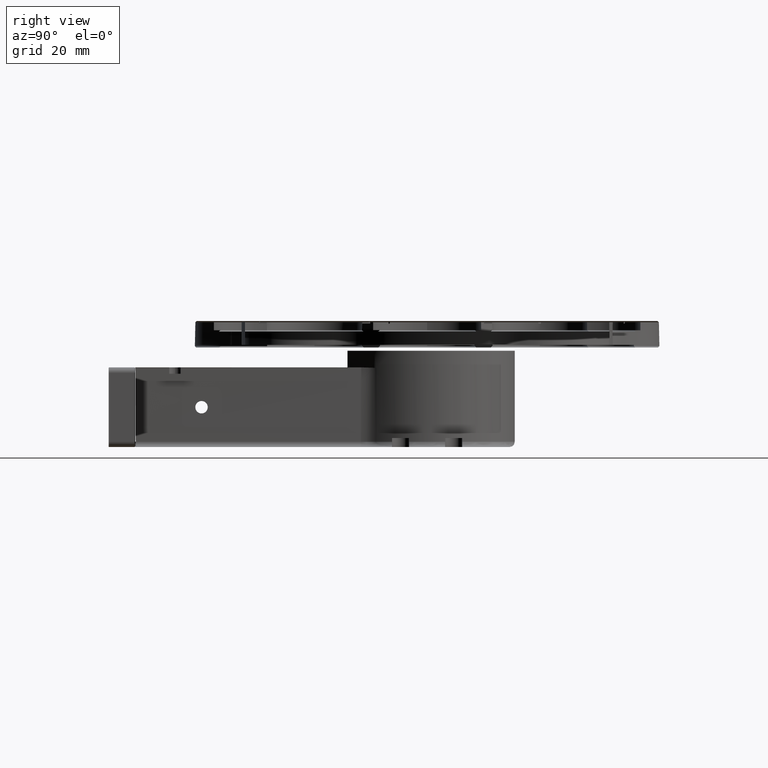
[diagram: clean part render]
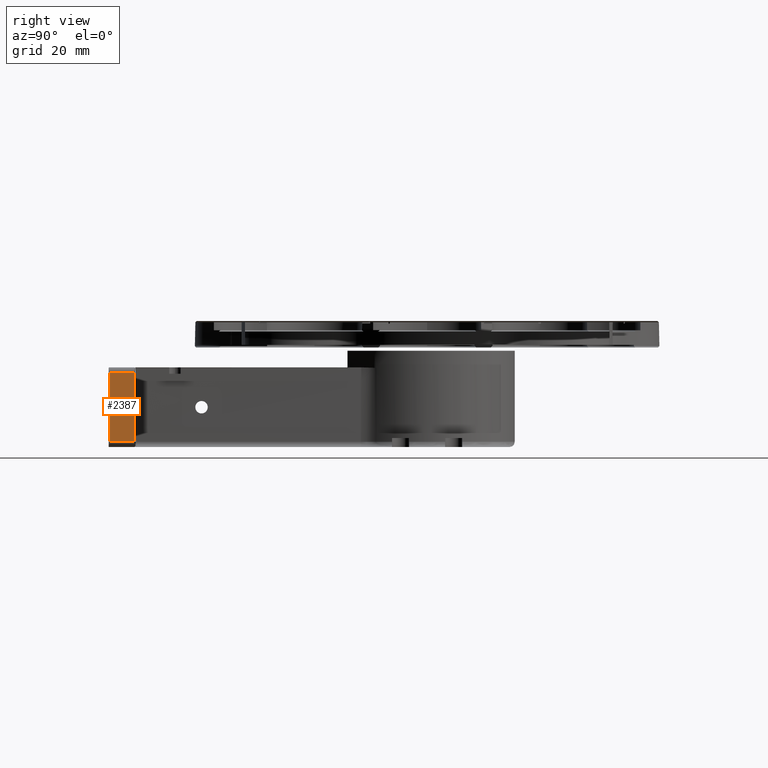
[diagram: same view with one face highlighted and labeled with its STEP entity id]
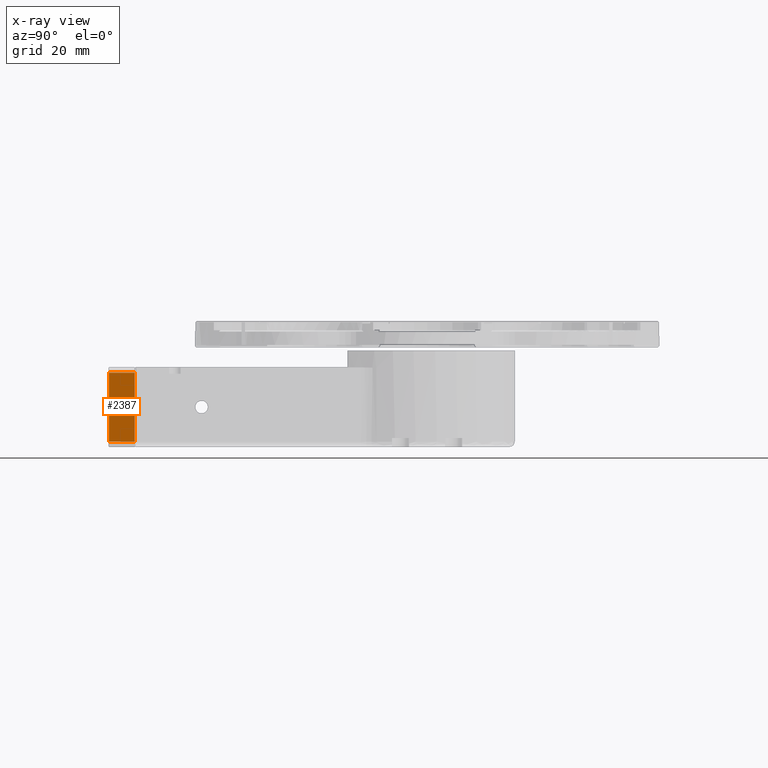
[diagram: x-ray of the same camera — body ghosted, the highlighted face saturated]
A machine part, right view. The second image highlights one B-rep face of the part: STEP entity #2387.
The next image is the same camera in x-ray: the body ghosted, the highlighted face saturated — about 0% of this face is hidden behind the body in this view.
In plain terms, the highlighted planar face has unit normal (-1, 0, 0).
Its self-contained STEP definition (entity closure, byte-faithful):
#207 = EDGE_CURVE ( 'NONE', #15082, #10840, #1075, .T. ) ;
#551 = CARTESIAN_POINT ( 'NONE',  ( 27.39887203422793149, -57.57421236872705350, 161.2499999999716351 ) ) ;
#1075 = LINE ( 'NONE', #13460, #1258 ) ;
#1088 = EDGE_CURVE ( 'NONE', #12287, #7295, #5594, .T. ) ;
#1258 = VECTOR ( 'NONE', #10841, 1000.000000000000000 ) ;
#1309 = CARTESIAN_POINT ( 'NONE',  ( 27.39887203422205886, -47.97421236872747130, 161.2499999999716351 ) ) ;
#1849 = DIRECTION ( 'NONE',  ( -6.938893903907228378E-17, -6.938893903907228378E-17, -1.000000000000000000 ) ) ;
#2207 = FACE_OUTER_BOUND ( 'NONE', #11054, .T. ) ;
#2387 = ADVANCED_FACE ( 'NONE', ( #2207 ), #16049, .F. ) ;
#2455 = DIRECTION ( 'NONE',  ( -1.000000000000000000, 0.000000000000000000, 1.387778780781445676E-16 ) ) ;
#3288 = CARTESIAN_POINT ( 'NONE',  ( 27.39887203421539752, -47.97421236872834527, 135.2499999999716351 ) ) ;
#5594 = LINE ( 'NONE', #12938, #6159 ) ;
#5956 = ORIENTED_EDGE ( 'NONE', *, *, #207, .F. ) ;
#6026 = CARTESIAN_POINT ( 'NONE',  ( 27.39887203422792794, -47.77421236872705634, 133.2499999999716351 ) ) ;
#6159 = VECTOR ( 'NONE', #1849, 1000.000000000000000 ) ;
#6453 = AXIS2_PLACEMENT_3D ( 'NONE', #6026, #2455, #14675 ) ;
#7202 = LINE ( 'NONE', #13421, #15757 ) ;
#7295 = VERTEX_POINT ( 'NONE', #3288 ) ;
#7717 = LINE ( 'NONE', #15154, #12026 ) ;
#7858 = ORIENTED_EDGE ( 'NONE', *, *, #14912, .F. ) ;
#9764 = ORIENTED_EDGE ( 'NONE', *, *, #9835, .F. ) ;
#9835 = EDGE_CURVE ( 'NONE', #7295, #15082, #7202, .T. ) ;
#9933 = ORIENTED_EDGE ( 'NONE', *, *, #1088, .F. ) ;
#10261 = DIRECTION ( 'NONE',  ( 0.000000000000000000, 1.000000000000000000, -0.000000000000000000 ) ) ;
#10658 = CARTESIAN_POINT ( 'NONE',  ( 27.39887203422388851, -57.57421236872190207, 135.2499999999716351 ) ) ;
#10840 = VERTEX_POINT ( 'NONE', #551 ) ;
#10841 = DIRECTION ( 'NONE',  ( 1.387778780781445676E-16, 0.000000000000000000, 1.000000000000000000 ) ) ;
#11054 = EDGE_LOOP ( 'NONE', ( #5956, #9764, #9933, #7858 ) ) ;
#12026 = VECTOR ( 'NONE', #10261, 1000.000000000000000 ) ;
#12287 = VERTEX_POINT ( 'NONE', #1309 ) ;
#12938 = CARTESIAN_POINT ( 'NONE',  ( 27.39887203422792794, -47.97421236872703787, 138.8264149409885704 ) ) ;
#13421 = CARTESIAN_POINT ( 'NONE',  ( 27.39887203422792794, -47.77421236872705634, 135.2499999999716351 ) ) ;
#13460 = CARTESIAN_POINT ( 'NONE',  ( 27.39887203422792794, -57.57421236872705350, 133.2499999999716351 ) ) ;
#14640 = DIRECTION ( 'NONE',  ( 0.000000000000000000, -1.000000000000000000, 0.000000000000000000 ) ) ;
#14675 = DIRECTION ( 'NONE',  ( 1.387778780781445676E-16, 0.000000000000000000, 1.000000000000000000 ) ) ;
#14912 = EDGE_CURVE ( 'NONE', #10840, #12287, #7717, .T. ) ;
#15082 = VERTEX_POINT ( 'NONE', #10658 ) ;
#15154 = CARTESIAN_POINT ( 'NONE',  ( 27.39887203422793149, -47.77421236872705634, 161.2499999999716351 ) ) ;
#15757 = VECTOR ( 'NONE', #14640, 1000.000000000000000 ) ;
#16049 = PLANE ( 'NONE',  #6453 ) ;